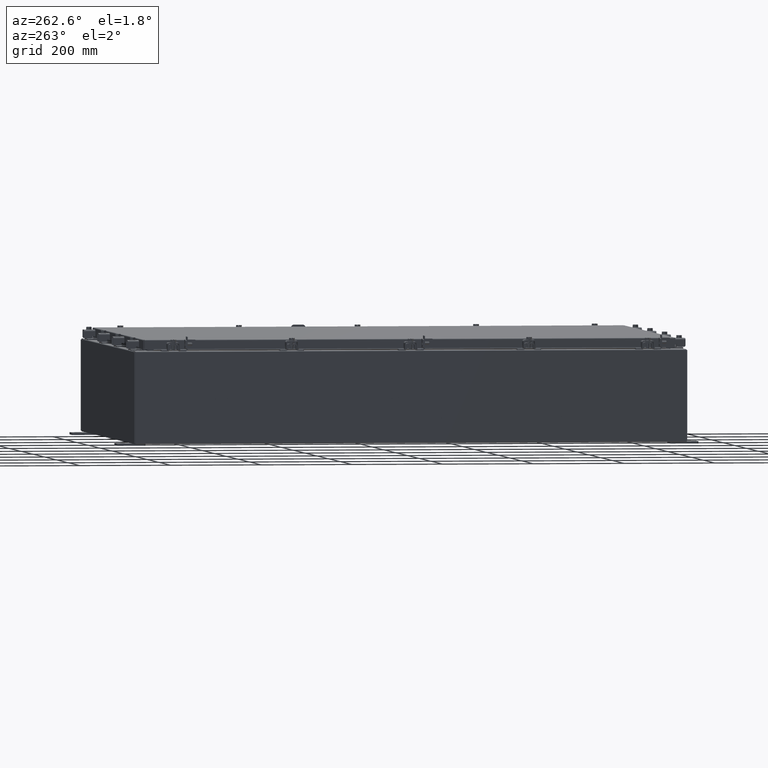
[diagram: clean part render]
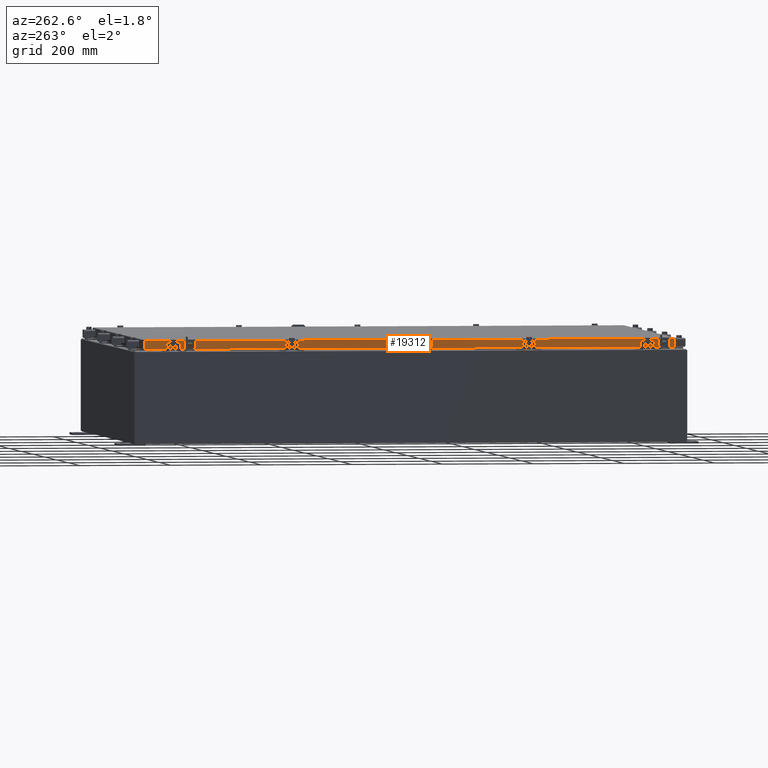
[diagram: same view with one face highlighted and labeled with its STEP entity id]
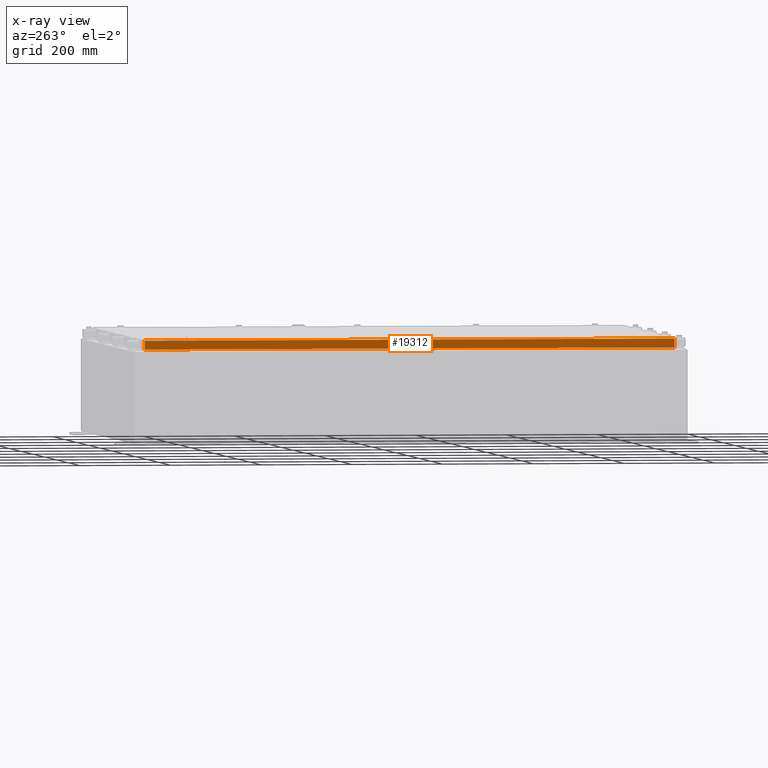
[diagram: x-ray of the same camera — body ghosted, the highlighted face saturated]
A machine part, auxiliary view. The second image highlights one B-rep face of the part: STEP entity #19312.
The next image is the same camera in x-ray: the body ghosted, the highlighted face saturated — about 0% of this face is hidden behind the body in this view.
In plain terms, the highlighted planar face has unit normal (1, 0, -0).
Its self-contained STEP definition (entity closure, byte-faithful):
#184 = EDGE_CURVE ( 'NONE', #16843, #12905, #2421, .T. ) ;
#1543 = DIRECTION ( 'NONE',  ( -2.818880942772360100E-015, 6.982962677686265900E-015, -1.000000000000000000 ) ) ;
#1927 = DIRECTION ( 'NONE',  ( 1.000000000000000000, 3.417889107165661600E-031, -2.818880942772360100E-015 ) ) ;
#2421 = LINE ( 'NONE', #3190, #18542 ) ;
#3190 = CARTESIAN_POINT ( 'NONE',  ( -17.07799999999998900, -22.25515786437625500, -0.8500000000000026400 ) ) ;
#3340 = DIRECTION ( 'NONE',  ( -2.818880942772360100E-015, 6.982962677686265900E-015, -1.000000000000000000 ) ) ;
#4755 = LINE ( 'NONE', #6908, #5446 ) ;
#5446 = VECTOR ( 'NONE', #19421, 39.37007874015748100 ) ;
#5979 = LINE ( 'NONE', #14740, #17180 ) ;
#6908 = CARTESIAN_POINT ( 'NONE',  ( -17.07799999999999900, -23.09399999999999400, -0.08770000000000007000 ) ) ;
#7456 = VECTOR ( 'NONE', #1543, 39.37007874015748100 ) ;
#7610 = VERTEX_POINT ( 'NONE', #23702 ) ;
#7746 = VECTOR ( 'NONE', #18810, 39.37007874015748100 ) ;
#8092 = VERTEX_POINT ( 'NONE', #23506 ) ;
#8566 = VECTOR ( 'NONE', #3340, 39.37007874015748100 ) ;
#9010 = ORIENTED_EDGE ( 'NONE', *, *, #10402, .T. ) ;
#9241 = LINE ( 'NONE', #11703, #8566 ) ;
#9282 = ORIENTED_EDGE ( 'NONE', *, *, #19918, .F. ) ;
#9540 = EDGE_LOOP ( 'NONE', ( #15224, #9010, #16919, #14840, #24801, #9282 ) ) ;
#9847 = CARTESIAN_POINT ( 'NONE',  ( -17.07799999999999900, -23.00515786437626200, -0.07469999999999978000 ) ) ;
#9887 = CARTESIAN_POINT ( 'NONE',  ( -17.07800000000000300, -23.00515786437625800, -0.8499999999999996400 ) ) ;
#10402 = EDGE_CURVE ( 'NONE', #8092, #11358, #9241, .T. ) ;
#10974 = DIRECTION ( 'NONE',  ( -0.0000000000000000000, 1.000000000000000000, -0.0000000000000000000 ) ) ;
#11358 = VERTEX_POINT ( 'NONE', #25437 ) ;
#11703 = CARTESIAN_POINT ( 'NONE',  ( -17.07799999999999900, 23.00515786437626200, 2.090458211578980900E-013 ) ) ;
#12905 = VERTEX_POINT ( 'NONE', #14030 ) ;
#13035 = LINE ( 'NONE', #9847, #7456 ) ;
#13545 = EDGE_CURVE ( 'NONE', #19165, #16843, #24550, .T. ) ;
#14030 = CARTESIAN_POINT ( 'NONE',  ( -17.07799999999998900, 22.25515786437623700, -0.8500000000000026400 ) ) ;
#14379 = FACE_OUTER_BOUND ( 'NONE', #9540, .T. ) ;
#14740 = CARTESIAN_POINT ( 'NONE',  ( -17.07800000000000300, -23.09399999999999400, -0.8499999999999996400 ) ) ;
#14840 = ORIENTED_EDGE ( 'NONE', *, *, #184, .F. ) ;
#15224 = ORIENTED_EDGE ( 'NONE', *, *, #21691, .F. ) ;
#16287 = AXIS2_PLACEMENT_3D ( 'NONE', #27143, #1927, #16668 ) ;
#16668 = DIRECTION ( 'NONE',  ( -2.818880942772360100E-015, 0.0000000000000000000, -1.000000000000000000 ) ) ;
#16725 = CARTESIAN_POINT ( 'NONE',  ( -17.07800000000000300, -23.09399999999999400, -0.8499999999999996400 ) ) ;
#16843 = VERTEX_POINT ( 'NONE', #24771 ) ;
#16919 = ORIENTED_EDGE ( 'NONE', *, *, #26393, .F. ) ;
#17180 = VECTOR ( 'NONE', #19049, 39.37007874015748100 ) ;
#18542 = VECTOR ( 'NONE', #10974, 39.37007874015748100 ) ;
#18810 = DIRECTION ( 'NONE',  ( -4.379057701015054300E-047, 1.000000000000000000, 1.212498568245375500E-016 ) ) ;
#19049 = DIRECTION ( 'NONE',  ( -4.379057701015054300E-047, 1.000000000000000000, 1.212498568245375500E-016 ) ) ;
#19165 = VERTEX_POINT ( 'NONE', #9887 ) ;
#19312 = ADVANCED_FACE ( 'NONE', ( #14379 ), #24977, .F. ) ;
#19421 = DIRECTION ( 'NONE',  ( 3.417889107165661600E-031, -1.000000000000000000, -9.316371385484559400E-046 ) ) ;
#19918 = EDGE_CURVE ( 'NONE', #7610, #19165, #13035, .T. ) ;
#21691 = EDGE_CURVE ( 'NONE', #8092, #7610, #4755, .T. ) ;
#23506 = CARTESIAN_POINT ( 'NONE',  ( -17.07799999999999900, 23.00515786437626200, -0.08770000000000007000 ) ) ;
#23702 = CARTESIAN_POINT ( 'NONE',  ( -17.07799999999999900, -23.00515786437626200, -0.08770000000000007000 ) ) ;
#24550 = LINE ( 'NONE', #16725, #7746 ) ;
#24771 = CARTESIAN_POINT ( 'NONE',  ( -17.07799999999998900, -22.25515786437626200, -0.8500000000000026400 ) ) ;
#24801 = ORIENTED_EDGE ( 'NONE', *, *, #13545, .F. ) ;
#24977 = PLANE ( 'NONE',  #16287 ) ;
#25437 = CARTESIAN_POINT ( 'NONE',  ( -17.07800000000000300, 23.00515786437626200, -0.8499999999999940900 ) ) ;
#26393 = EDGE_CURVE ( 'NONE', #12905, #11358, #5979, .T. ) ;
#27143 = CARTESIAN_POINT ( 'NONE',  ( -17.07799999999999900, -5.837071017217516000E-030, 4.840166239667794100E-014 ) ) ;